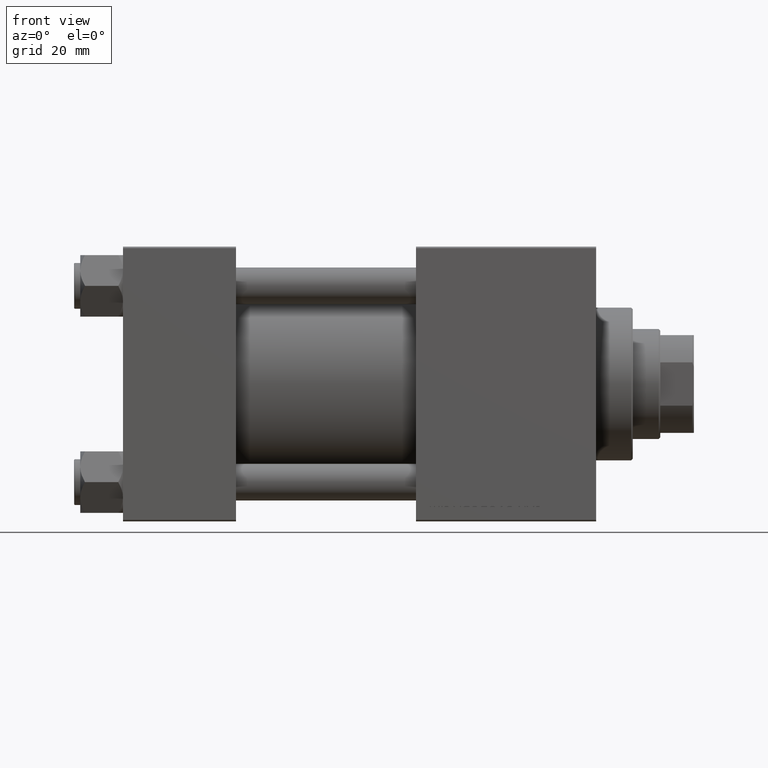
[diagram: clean part render]
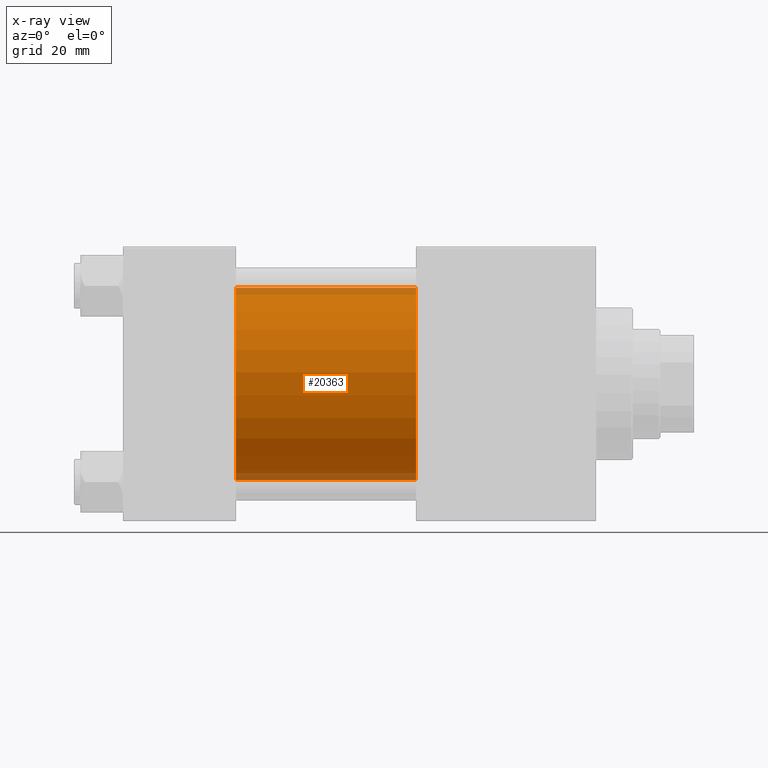
[diagram: x-ray — body ghosted, one internal face saturated and labeled with its STEP entity id]
A machine part, front view, then the same camera in x-ray: the body is ghosted and one INTERNAL B-rep face — a face not visible from any outside direction — is saturated and labeled: STEP entity #20363.
In plain terms, the highlighted cylindrical surface (partial cylindrical patch) has radius 31.5 mm, axis along (-1, -0, -0).
Its self-contained STEP definition (entity closure, byte-faithful):
#696 = ORIENTED_EDGE ( 'NONE', *, *, #4757, .T. ) ;
#742 = LINE ( 'NONE', #16225, #27166 ) ;
#3685 = CIRCLE ( 'NONE', #19080, 31.50000000000000000 ) ;
#4757 = EDGE_CURVE ( 'NONE', #33996, #42397, #3685, .T. ) ;
#5703 = CARTESIAN_POINT ( 'NONE',  ( 96.00000000000000000, -2.602085213965210642E-15, 31.50000000000000000 ) ) ;
#7889 = AXIS2_PLACEMENT_3D ( 'NONE', #30748, #26939, #34791 ) ;
#9850 = LINE ( 'NONE', #48440, #46555 ) ;
#12592 = EDGE_CURVE ( 'NONE', #30220, #30768, #13588, .T. ) ;
#12978 = CARTESIAN_POINT ( 'NONE',  ( 37.00000000000000000, 1.255552203348951850E-15, -31.50000000000000000 ) ) ;
#13588 = CIRCLE ( 'NONE', #7889, 31.50000000000000000 ) ;
#16225 = CARTESIAN_POINT ( 'NONE',  ( 96.00000000000000000, -2.602085213965210642E-15, 31.50000000000000000 ) ) ;
#18996 = DIRECTION ( 'NONE',  ( 0.000000000000000000, 0.000000000000000000, 1.000000000000000000 ) ) ;
#19080 = AXIS2_PLACEMENT_3D ( 'NONE', #47770, #28483, #43705 ) ;
#20205 = CARTESIAN_POINT ( 'NONE',  ( 37.00000000000000000, -2.602085213965210642E-15, 31.50000000000000000 ) ) ;
#20363 = ADVANCED_FACE ( 'NONE', ( #38298 ), #27125, .F. ) ;
#25340 = DIRECTION ( 'NONE',  ( -1.000000000000000000, -0.000000000000000000, -0.000000000000000000 ) ) ;
#26939 = DIRECTION ( 'NONE',  ( 1.000000000000000000, 0.000000000000000000, 0.000000000000000000 ) ) ;
#27125 = CYLINDRICAL_SURFACE ( 'NONE', #43827, 31.50000000000000000 ) ;
#27166 = VECTOR ( 'NONE', #47209, 1000.000000000000000 ) ;
#28063 = CARTESIAN_POINT ( 'NONE',  ( 96.00000000000000000, -2.602085213965210642E-15, 0.000000000000000000 ) ) ;
#28483 = DIRECTION ( 'NONE',  ( 1.000000000000000000, 0.000000000000000000, 0.000000000000000000 ) ) ;
#29926 = EDGE_CURVE ( 'NONE', #42397, #30768, #9850, .T. ) ;
#30220 = VERTEX_POINT ( 'NONE', #20205 ) ;
#30748 = CARTESIAN_POINT ( 'NONE',  ( 37.00000000000000000, -2.602085213965210642E-15, 0.000000000000000000 ) ) ;
#30768 = VERTEX_POINT ( 'NONE', #12978 ) ;
#30939 = DIRECTION ( 'NONE',  ( -1.000000000000000000, -0.000000000000000000, -0.000000000000000000 ) ) ;
#32139 = ORIENTED_EDGE ( 'NONE', *, *, #12592, .F. ) ;
#32392 = EDGE_CURVE ( 'NONE', #33996, #30220, #742, .T. ) ;
#32997 = ORIENTED_EDGE ( 'NONE', *, *, #29926, .T. ) ;
#33996 = VERTEX_POINT ( 'NONE', #5703 ) ;
#34791 = DIRECTION ( 'NONE',  ( 0.000000000000000000, 0.000000000000000000, -1.000000000000000000 ) ) ;
#36133 = EDGE_LOOP ( 'NONE', ( #696, #32997, #32139, #42965 ) ) ;
#38298 = FACE_OUTER_BOUND ( 'NONE', #36133, .T. ) ;
#39723 = CARTESIAN_POINT ( 'NONE',  ( 96.00000000000000000, 1.255552203348951850E-15, -31.50000000000000000 ) ) ;
#42397 = VERTEX_POINT ( 'NONE', #39723 ) ;
#42965 = ORIENTED_EDGE ( 'NONE', *, *, #32392, .F. ) ;
#43705 = DIRECTION ( 'NONE',  ( 0.000000000000000000, 0.000000000000000000, -1.000000000000000000 ) ) ;
#43827 = AXIS2_PLACEMENT_3D ( 'NONE', #28063, #30939, #18996 ) ;
#46555 = VECTOR ( 'NONE', #25340, 1000.000000000000000 ) ;
#47209 = DIRECTION ( 'NONE',  ( -1.000000000000000000, -0.000000000000000000, -0.000000000000000000 ) ) ;
#47770 = CARTESIAN_POINT ( 'NONE',  ( 96.00000000000000000, -2.602085213965210642E-15, 0.000000000000000000 ) ) ;
#48440 = CARTESIAN_POINT ( 'NONE',  ( 96.00000000000000000, 1.255552203348951850E-15, -31.50000000000000000 ) ) ;